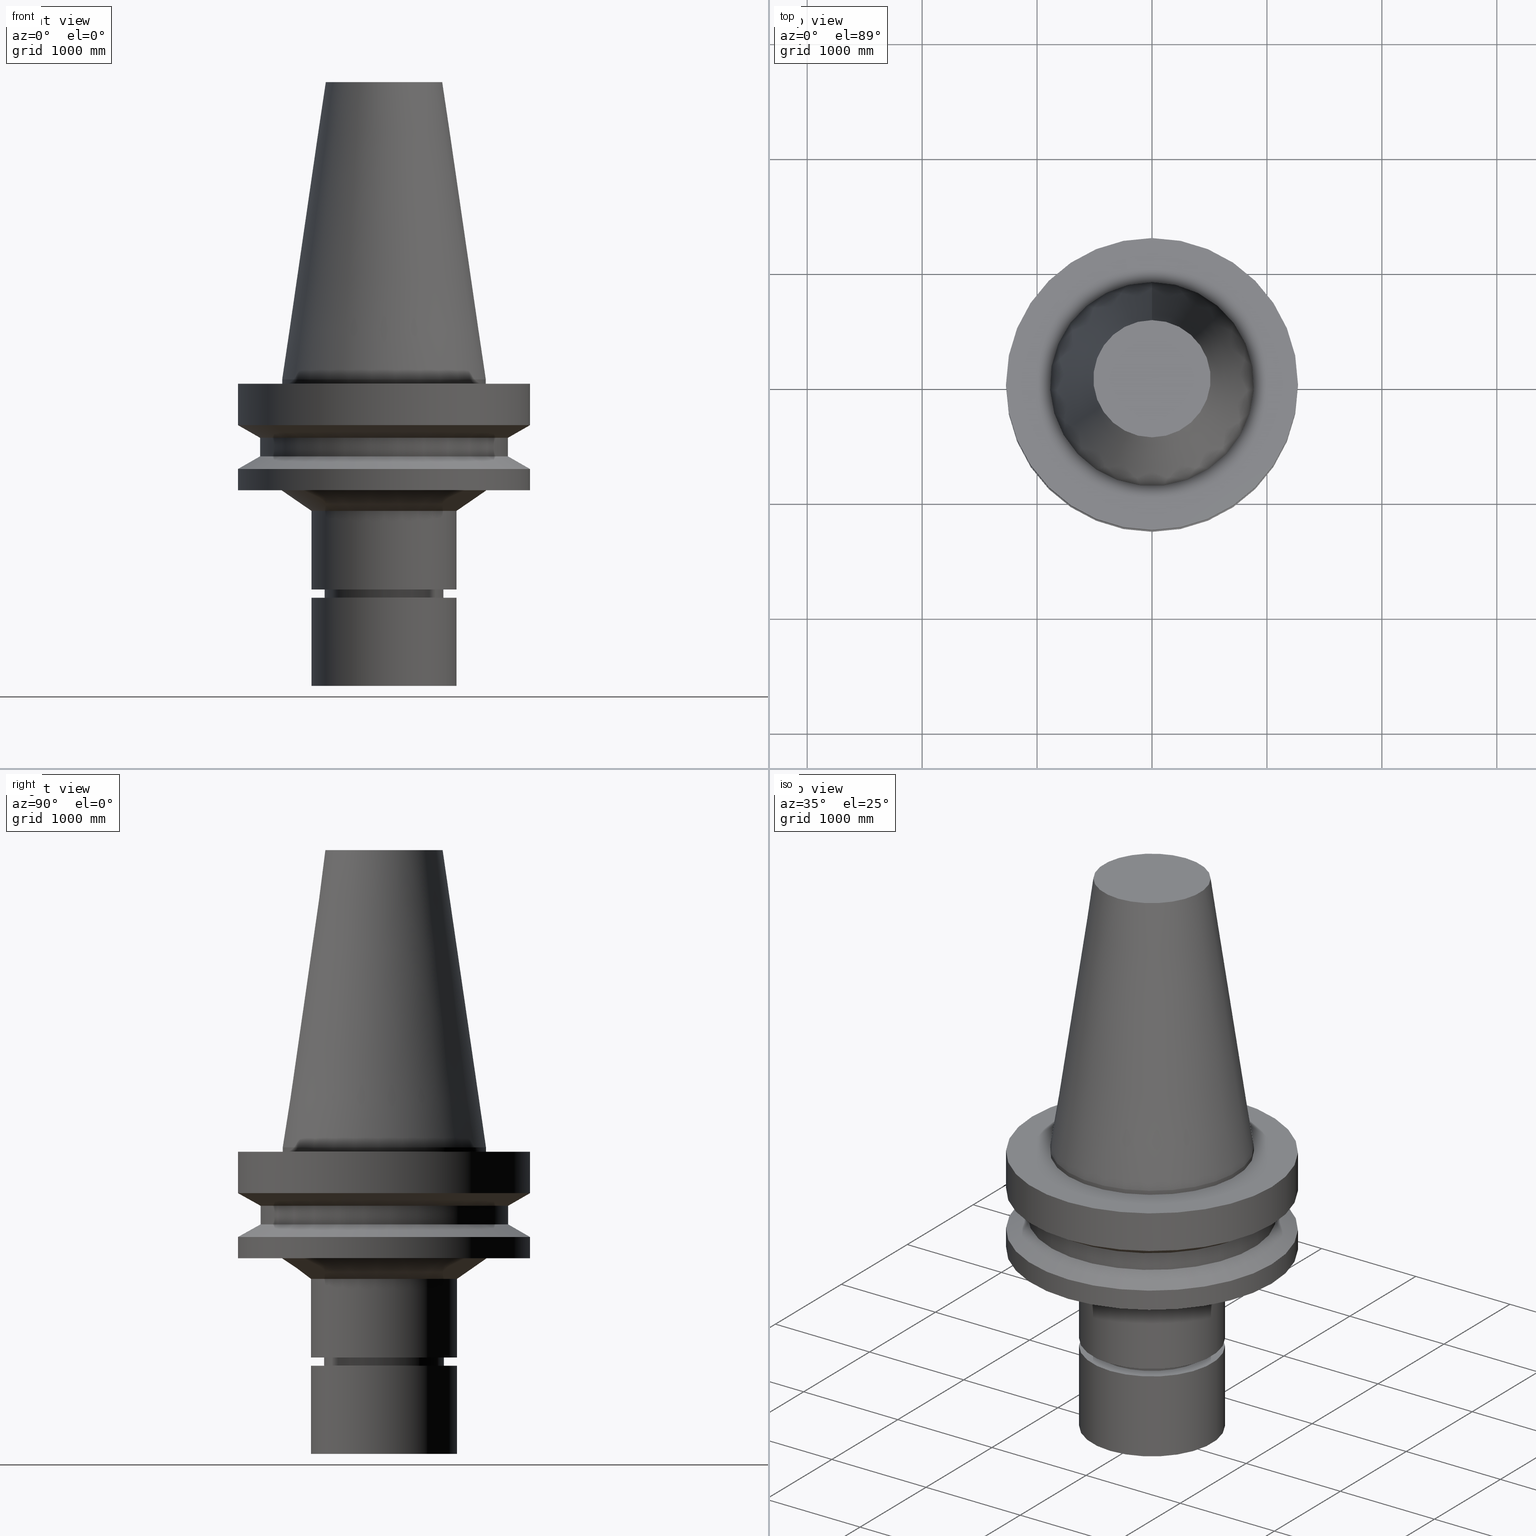
[diagram: canonical four-view strip — front | top / right | iso, engineering-drawing reading convention]
A machine part, canonical four-view strip (front | top / right | iso — engineering-drawing reading convention). The complete STEP part file that produces these views, byte-faithful:
ISO-10303-21;
HEADER;
FILE_DESCRIPTION((''),'1');
FILE_NAME('V:/90_\X2\53D65F9730C730FC30BF\X0\/00_\X2\6DE18DEF30C730FC30BF\X0\/ALL/BBT-BKUS\X2\FF76FF80FF9BFF78FF9E752852A05DE556F3\X0\201801/BBT50-MEGAER/BBT50-MEGAER32-105NL.stp','2018-02-02T08:17:34',(''),(''),'Spatial Interop R21 SP3','Kubotek KeyCreator 2011 V10.0.2 (22737)',' ');
FILE_SCHEMA(('automotive_design'));
ENDSEC;
DATA;
#1=MECHANICAL_DESIGN_GEOMETRIC_PRESENTATION_REPRESENTATION(' ',(#14,#15,#16,#17,#18,#19,#20,#21,#22,#23,#24,#25,#26,#27,#28,#29,#30,#31,#32,#33,#34,#35,#36,#37,#38,#39,#40,#41,#42,#43,#44,#45,#46,#47,#48,#49,#50,#51,#52,#53,#54,#55),#10);
#2=PRODUCT_DEFINITION_CONTEXT('',#56,'design');
#3=APPLICATION_PROTOCOL_DEFINITION('INTERNATIONAL STANDARD','automotive_design',1994,#56);
#4=PRODUCT_CATEGORY_RELATIONSHIP('NONE','NONE',#57,#58);
#5=SHAPE_DEFINITION_REPRESENTATION(#59,#60);
#6=PRODUCT_DEFINITION_CONTEXT('',#61,'design');
#7=APPLICATION_PROTOCOL_DEFINITION('INTERNATIONAL STANDARD','automotive_design',1994,#61);
#8=PRODUCT_CATEGORY_RELATIONSHIP('NONE','NONE',#62,#63);
#9=SHAPE_DEFINITION_REPRESENTATION(#64,#65);
#10= (GEOMETRIC_REPRESENTATION_CONTEXT(3)GLOBAL_UNCERTAINTY_ASSIGNED_CONTEXT((#68))GLOBAL_UNIT_ASSIGNED_CONTEXT((#70,#71,#72))REPRESENTATION_CONTEXT('NONE','WORKSPACE'));
#14=STYLED_ITEM('',(#74),#75);
#15=STYLED_ITEM('',(#76),#77);
#16=STYLED_ITEM('',(#78),#79);
#17=STYLED_ITEM('',(#80,#81),#82);
#18=STYLED_ITEM('',(#83,#84),#85);
#19=STYLED_ITEM('',(#86,#87),#88);
#20=STYLED_ITEM('',(#89,#90),#91);
#21=STYLED_ITEM('',(#92,#93),#94);
#22=STYLED_ITEM('',(#95,#96),#97);
#23=STYLED_ITEM('',(#98),#99);
#24=STYLED_ITEM('',(#100),#101);
#25=STYLED_ITEM('',(#102,#103),#104);
#26=STYLED_ITEM('',(#105),#106);
#27=STYLED_ITEM('',(#107),#108);
#28=STYLED_ITEM('',(#109),#110);
#29=STYLED_ITEM('',(#111),#112);
#30=STYLED_ITEM('',(#113,#114),#115);
#31=STYLED_ITEM('',(#116,#117),#118);
#32=STYLED_ITEM('',(#119,#120),#121);
#33=STYLED_ITEM('',(#122),#123);
#34=STYLED_ITEM('',(#124,#125),#126);
#35=STYLED_ITEM('',(#127,#128),#129);
#36=STYLED_ITEM('',(#130),#131);
#37=STYLED_ITEM('',(#132,#133),#134);
#38=STYLED_ITEM('',(#135,#136),#137);
#39=STYLED_ITEM('',(#138),#139);
#40=STYLED_ITEM('',(#140,#141),#142);
#41=STYLED_ITEM('',(#143),#144);
#42=STYLED_ITEM('',(#145,#146),#147);
#43=STYLED_ITEM('',(#148,#149),#150);
#44=STYLED_ITEM('',(#151),#152);
#45=STYLED_ITEM('',(#153,#154),#155);
#46=STYLED_ITEM('',(#156),#157);
#47=STYLED_ITEM('',(#158,#159),#160);
#48=STYLED_ITEM('',(#161,#162),#163);
#49=STYLED_ITEM('',(#164,#165),#166);
#50=STYLED_ITEM('',(#167,#168),#169);
#51=STYLED_ITEM('',(#170),#171);
#52=STYLED_ITEM('',(#172),#173);
#53=STYLED_ITEM('',(#174,#175),#176);
#54=STYLED_ITEM('',(#177),#178);
#55=STYLED_ITEM('',(#179),#180);
#56=APPLICATION_CONTEXT(' ');
#57=PRODUCT_CATEGORY('part','NONE');
#58=PRODUCT_RELATED_PRODUCT_CATEGORY('detail',' ',(#181));
#59=PRODUCT_DEFINITION_SHAPE('NONE','NONE',#182);
#60=ADVANCED_BREP_SHAPE_REPRESENTATION('Unnamed[1]',(#169,#183),#10);
#61=APPLICATION_CONTEXT(' ');
#62=PRODUCT_CATEGORY('part','NONE');
#63=PRODUCT_RELATED_PRODUCT_CATEGORY('detail',' ',(#184));
#64=PRODUCT_DEFINITION_SHAPE('NONE','NONE',#185);
#65=ADVANCED_BREP_SHAPE_REPRESENTATION('Unnamed[1]',(#137,#186),#10);
#68=UNCERTAINTY_MEASURE_WITH_UNIT(LENGTH_MEASURE(1.0E-006),#70,'','');
#70= (CONVERSION_BASED_UNIT('INCH',#189)LENGTH_UNIT()NAMED_UNIT(#192));
#71= (NAMED_UNIT(#194)PLANE_ANGLE_UNIT()SI_UNIT($,.RADIAN.));
#72= (NAMED_UNIT(#194)SOLID_ANGLE_UNIT()SI_UNIT($,.STERADIAN.));
#74=PRESENTATION_STYLE_ASSIGNMENT((#200));
#75=EDGE_CURVE('Unnamed[1]',#201,#201,#202,.T.);
#76=PRESENTATION_STYLE_ASSIGNMENT((#203));
#77=EDGE_CURVE('Unnamed[1]',#204,#204,#205,.T.);
#78=PRESENTATION_STYLE_ASSIGNMENT((#206));
#79=EDGE_CURVE('Unnamed[1]',#207,#207,#208,.T.);
#80=PRESENTATION_STYLE_ASSIGNMENT((#209));
#81=PRESENTATION_STYLE_ASSIGNMENT((#210));
#82=ADVANCED_FACE('Unnamed[1]',(#211,#212),#213,.T.);
#83=PRESENTATION_STYLE_ASSIGNMENT((#214));
#84=PRESENTATION_STYLE_ASSIGNMENT((#215));
#85=ADVANCED_FACE('Unnamed[1]',(#216,#217),#218,.T.);
#86=PRESENTATION_STYLE_ASSIGNMENT((#219));
#87=PRESENTATION_STYLE_ASSIGNMENT((#220));
#88=ADVANCED_FACE('Unnamed[1]',(#221,#222),#223,.T.);
#89=PRESENTATION_STYLE_ASSIGNMENT((#224));
#90=PRESENTATION_STYLE_ASSIGNMENT((#225));
#91=ADVANCED_FACE('Unnamed[1]',(#226,#227),#228,.T.);
#92=PRESENTATION_STYLE_ASSIGNMENT((#229));
#93=PRESENTATION_STYLE_ASSIGNMENT((#230));
#94=ADVANCED_FACE('Unnamed[1]',(#231,#232),#233,.T.);
#95=PRESENTATION_STYLE_ASSIGNMENT((#234));
#96=PRESENTATION_STYLE_ASSIGNMENT((#235));
#97=ADVANCED_FACE('Unnamed[1]',(#236,#237),#238,.T.);
#98=PRESENTATION_STYLE_ASSIGNMENT((#239));
#99=EDGE_CURVE('Unnamed[1]',#240,#240,#241,.T.);
#100=PRESENTATION_STYLE_ASSIGNMENT((#242));
#101=EDGE_CURVE('Unnamed[1]',#243,#243,#244,.T.);
#102=PRESENTATION_STYLE_ASSIGNMENT((#245));
#103=PRESENTATION_STYLE_ASSIGNMENT((#246));
#104=ADVANCED_FACE('Unnamed[1]',(#247),#248,.T.);
#105=PRESENTATION_STYLE_ASSIGNMENT((#249));
#106=EDGE_CURVE('Unnamed[1]',#250,#250,#251,.T.);
#107=PRESENTATION_STYLE_ASSIGNMENT((#252));
#108=EDGE_CURVE('Unnamed[1]',#253,#253,#254,.T.);
#109=PRESENTATION_STYLE_ASSIGNMENT((#255));
#110=EDGE_CURVE('Unnamed[1]',#256,#256,#257,.T.);
#111=PRESENTATION_STYLE_ASSIGNMENT((#258));
#112=EDGE_CURVE('Unnamed[1]',#259,#259,#260,.T.);
#113=PRESENTATION_STYLE_ASSIGNMENT((#261));
#114=PRESENTATION_STYLE_ASSIGNMENT((#262));
#115=ADVANCED_FACE('Unnamed[1]',(#263,#264),#265,.T.);
#116=PRESENTATION_STYLE_ASSIGNMENT((#266));
#117=PRESENTATION_STYLE_ASSIGNMENT((#267));
#118=ADVANCED_FACE('Unnamed[1]',(#268,#269),#270,.T.);
#119=PRESENTATION_STYLE_ASSIGNMENT((#271));
#120=PRESENTATION_STYLE_ASSIGNMENT((#272));
#121=ADVANCED_FACE('Unnamed[1]',(#273,#274),#275,.T.);
#122=PRESENTATION_STYLE_ASSIGNMENT((#276));
#123=EDGE_CURVE('Unnamed[1]',#277,#277,#278,.T.);
#124=PRESENTATION_STYLE_ASSIGNMENT((#279));
#125=PRESENTATION_STYLE_ASSIGNMENT((#280));
#126=ADVANCED_FACE('Unnamed[1]',(#281,#282),#283,.T.);
#127=PRESENTATION_STYLE_ASSIGNMENT((#284));
#128=PRESENTATION_STYLE_ASSIGNMENT((#285));
#129=ADVANCED_FACE('Unnamed[1]',(#286,#287),#288,.T.);
#130=PRESENTATION_STYLE_ASSIGNMENT((#289));
#131=EDGE_CURVE('Unnamed[1]',#290,#290,#291,.T.);
#132=PRESENTATION_STYLE_ASSIGNMENT((#292));
#133=PRESENTATION_STYLE_ASSIGNMENT((#293));
#134=ADVANCED_FACE('Unnamed[1]',(#294,#295),#296,.T.);
#135=PRESENTATION_STYLE_ASSIGNMENT((#297));
#136=PRESENTATION_STYLE_ASSIGNMENT((#298));
#137=MANIFOLD_SOLID_BREP('Unnamed[1]',#299);
#138=PRESENTATION_STYLE_ASSIGNMENT((#300));
#139=EDGE_CURVE('Unnamed[1]',#301,#301,#302,.T.);
#140=PRESENTATION_STYLE_ASSIGNMENT((#303));
#141=PRESENTATION_STYLE_ASSIGNMENT((#304));
#142=ADVANCED_FACE('Unnamed[1]',(#305,#306),#307,.T.);
#143=PRESENTATION_STYLE_ASSIGNMENT((#308));
#144=EDGE_CURVE('Unnamed[1]',#309,#309,#310,.T.);
#145=PRESENTATION_STYLE_ASSIGNMENT((#311));
#146=PRESENTATION_STYLE_ASSIGNMENT((#312));
#147=ADVANCED_FACE('Unnamed[1]',(#313),#314,.T.);
#148=PRESENTATION_STYLE_ASSIGNMENT((#315));
#149=PRESENTATION_STYLE_ASSIGNMENT((#316));
#150=ADVANCED_FACE('Unnamed[1]',(#317,#318),#319,.T.);
#151=PRESENTATION_STYLE_ASSIGNMENT((#320));
#152=EDGE_CURVE('Unnamed[1]',#321,#321,#322,.T.);
#153=PRESENTATION_STYLE_ASSIGNMENT((#323));
#154=PRESENTATION_STYLE_ASSIGNMENT((#324));
#155=ADVANCED_FACE('Unnamed[1]',(#325,#326),#327,.T.);
#156=PRESENTATION_STYLE_ASSIGNMENT((#328));
#157=EDGE_CURVE('Unnamed[1]',#329,#329,#330,.T.);
#158=PRESENTATION_STYLE_ASSIGNMENT((#331));
#159=PRESENTATION_STYLE_ASSIGNMENT((#332));
#160=ADVANCED_FACE('Unnamed[1]',(#333),#334,.T.);
#161=PRESENTATION_STYLE_ASSIGNMENT((#335));
#162=PRESENTATION_STYLE_ASSIGNMENT((#336));
#163=ADVANCED_FACE('Unnamed[1]',(#337),#338,.T.);
#164=PRESENTATION_STYLE_ASSIGNMENT((#339));
#165=PRESENTATION_STYLE_ASSIGNMENT((#340));
#166=ADVANCED_FACE('Unnamed[1]',(#341,#342),#343,.T.);
#167=PRESENTATION_STYLE_ASSIGNMENT((#344));
#168=PRESENTATION_STYLE_ASSIGNMENT((#345));
#169=MANIFOLD_SOLID_BREP('Unnamed[1]',#346);
#170=PRESENTATION_STYLE_ASSIGNMENT((#347));
#171=EDGE_CURVE('Unnamed[1]',#348,#348,#349,.T.);
#172=PRESENTATION_STYLE_ASSIGNMENT((#350));
#173=EDGE_CURVE('Unnamed[1]',#351,#351,#352,.T.);
#174=PRESENTATION_STYLE_ASSIGNMENT((#353));
#175=PRESENTATION_STYLE_ASSIGNMENT((#354));
#176=ADVANCED_FACE('Unnamed[1]',(#355,#356),#357,.T.);
#177=PRESENTATION_STYLE_ASSIGNMENT((#358));
#178=EDGE_CURVE('Unnamed[1]',#359,#359,#360,.T.);
#179=PRESENTATION_STYLE_ASSIGNMENT((#361));
#180=EDGE_CURVE('Unnamed[1]',#362,#362,#363,.T.);
#181=PRODUCT('Unnamed[1]','Unnamed[1]','PART-Unnamed[1]-DESC',(#364));
#182=PRODUCT_DEFINITION('NONE','NONE',#365,#2);
#183=AXIS2_PLACEMENT_3D('',#366,#367,#368);
#184=PRODUCT('Unnamed[1]','Unnamed[1]','PART-Unnamed[1]-DESC',(#369));
#185=PRODUCT_DEFINITION('NONE','NONE',#370,#6);
#186=AXIS2_PLACEMENT_3D('',#371,#372,#373);
#189=LENGTH_MEASURE_WITH_UNIT(LENGTH_MEASURE(25.4),#374);
#192=DIMENSIONAL_EXPONENTS(1.0,0.0,0.0,0.0,0.0,0.0,0.0);
#194=DIMENSIONAL_EXPONENTS(0.0,0.0,0.0,0.0,0.0,0.0,0.0);
#200=CURVE_STYLE('',#375,POSITIVE_LENGTH_MEASURE(1000.0),#376);
#201=VERTEX_POINT('',#377);
#202=CIRCLE('',#378,50.0);
#203=CURVE_STYLE('',#379,POSITIVE_LENGTH_MEASURE(1000.0),#380);
#204=VERTEX_POINT('',#381);
#205=CIRCLE('',#382,35.1435726714549);
#206=CURVE_STYLE('',#383,POSITIVE_LENGTH_MEASURE(1000.0),#384);
#207=VERTEX_POINT('',#385);
#208=CIRCLE('',#386,20.0);
#209=SURFACE_STYLE_USAGE(.BOTH.,#387);
#210=CURVE_STYLE('',#388,POSITIVE_LENGTH_MEASURE(1000.0),#389);
#211=FACE_OUTER_BOUND('',#390,.T.);
#212=FACE_BOUND('',#391,.T.);
#213=PLANE('',#392);
#214=SURFACE_STYLE_USAGE(.BOTH.,#393);
#215=CURVE_STYLE('',#394,POSITIVE_LENGTH_MEASURE(1000.0),#395);
#216=FACE_BOUND('',#396,.T.);
#217=FACE_BOUND('',#397,.T.);
#218=CYLINDRICAL_SURFACE('',#398,20.4999999999961);
#219=SURFACE_STYLE_USAGE(.BOTH.,#399);
#220=CURVE_STYLE('',#400,POSITIVE_LENGTH_MEASURE(1000.0),#401);
#221=FACE_BOUND('',#402,.T.);
#222=FACE_BOUND('',#403,.T.);
#223=CONICAL_SURFACE('',#404,20.2500000000006,1.04719755120248);
#224=SURFACE_STYLE_USAGE(.BOTH.,#405);
#225=CURVE_STYLE('',#406,POSITIVE_LENGTH_MEASURE(1000.0),#407);
#226=FACE_BOUND('',#408,.T.);
#227=FACE_BOUND('',#409,.T.);
#228=CONICAL_SURFACE('',#410,46.25,1.04719755108882);
#229=SURFACE_STYLE_USAGE(.BOTH.,#411);
#230=CURVE_STYLE('',#412,POSITIVE_LENGTH_MEASURE(1000.0),#413);
#231=FACE_BOUND('',#414,.T.);
#232=FACE_OUTER_BOUND('',#415,.T.);
#233=PLANE('',#416);
#234=SURFACE_STYLE_USAGE(.BOTH.,#417);
#235=CURVE_STYLE('',#418,POSITIVE_LENGTH_MEASURE(1000.0),#419);
#236=FACE_BOUND('',#420,.T.);
#237=FACE_BOUND('',#421,.T.);
#238=CONICAL_SURFACE('',#422,19.4499999999999,0.523598775598211);
#239=CURVE_STYLE('',#423,POSITIVE_LENGTH_MEASURE(1000.0),#424);
#240=VERTEX_POINT('',#425);
#241=CIRCLE('',#426,50.0);
#242=CURVE_STYLE('',#427,POSITIVE_LENGTH_MEASURE(1000.0),#428);
#243=VERTEX_POINT('',#429);
#244=CIRCLE('',#430,34.925);
#245=SURFACE_STYLE_USAGE(.BOTH.,#431);
#246=CURVE_STYLE('',#432,POSITIVE_LENGTH_MEASURE(1000.0),#433);
#247=FACE_OUTER_BOUND('',#434,.T.);
#248=PLANE('',#435);
#249=CURVE_STYLE('',#436,POSITIVE_LENGTH_MEASURE(1000.0),#437);
#250=VERTEX_POINT('',#438);
#251=CIRCLE('',#439,34.925);
#252=CURVE_STYLE('',#440,POSITIVE_LENGTH_MEASURE(1000.0),#441);
#253=VERTEX_POINT('',#442);
#254=CIRCLE('',#443,20.0791666651884);
#255=CURVE_STYLE('',#444,POSITIVE_LENGTH_MEASURE(1000.0),#445);
#256=VERTEX_POINT('',#446);
#257=CIRCLE('',#447,20.0000000000001);
#258=CURVE_STYLE('',#448,POSITIVE_LENGTH_MEASURE(1000.0),#449);
#259=VERTEX_POINT('',#450);
#260=CIRCLE('',#451,42.5);
#261=SURFACE_STYLE_USAGE(.BOTH.,#452);
#262=CURVE_STYLE('',#453,POSITIVE_LENGTH_MEASURE(1000.0),#454);
#263=FACE_BOUND('',#455,.T.);
#264=FACE_BOUND('',#456,.T.);
#265=CYLINDRICAL_SURFACE('',#457,50.0);
#266=SURFACE_STYLE_USAGE(.BOTH.,#458);
#267=CURVE_STYLE('',#459,POSITIVE_LENGTH_MEASURE(1000.0),#460);
#268=FACE_BOUND('',#461,.T.);
#269=FACE_BOUND('',#462,.T.);
#270=CYLINDRICAL_SURFACE('',#463,34.925);
#271=SURFACE_STYLE_USAGE(.BOTH.,#464);
#272=CURVE_STYLE('',#465,POSITIVE_LENGTH_MEASURE(1000.0),#466);
#273=FACE_BOUND('',#467,.T.);
#274=FACE_BOUND('',#468,.T.);
#275=CYLINDRICAL_SURFACE('',#469,42.5);
#276=CURVE_STYLE('',#470,POSITIVE_LENGTH_MEASURE(1000.0),#471);
#277=VERTEX_POINT('',#472);
#278=CIRCLE('',#473,42.5);
#279=SURFACE_STYLE_USAGE(.BOTH.,#474);
#280=CURVE_STYLE('',#475,POSITIVE_LENGTH_MEASURE(1000.0),#476);
#281=FACE_BOUND('',#477,.T.);
#282=FACE_BOUND('',#478,.T.);
#283=CYLINDRICAL_SURFACE('',#479,25.0000000000002);
#284=SURFACE_STYLE_USAGE(.BOTH.,#480);
#285=CURVE_STYLE('',#481,POSITIVE_LENGTH_MEASURE(1000.0),#482);
#286=FACE_BOUND('',#483,.T.);
#287=FACE_BOUND('',#484,.T.);
#288=CYLINDRICAL_SURFACE('',#485,50.0);
#289=CURVE_STYLE('',#486,POSITIVE_LENGTH_MEASURE(1000.0),#487);
#290=VERTEX_POINT('',#488);
#291=CIRCLE('',#489,25.0);
#292=SURFACE_STYLE_USAGE(.BOTH.,#490);
#293=CURVE_STYLE('',#491,POSITIVE_LENGTH_MEASURE(1000.0),#492);
#294=FACE_OUTER_BOUND('',#493,.T.);
#295=FACE_BOUND('',#494,.T.);
#296=PLANE('',#495);
#297=SURFACE_STYLE_USAGE(.BOTH.,#496);
#298=CURVE_STYLE('',#497,POSITIVE_LENGTH_MEASURE(1000.0),#498);
#299=CLOSED_SHELL('',(#163,#147,#155));
#300=CURVE_STYLE('',#499,POSITIVE_LENGTH_MEASURE(1000.0),#500);
#301=VERTEX_POINT('',#501);
#302=CIRCLE('',#502,20.4999999999911);
#303=SURFACE_STYLE_USAGE(.BOTH.,#503);
#304=CURVE_STYLE('',#504,POSITIVE_LENGTH_MEASURE(1000.0),#505);
#305=FACE_BOUND('',#506,.T.);
#306=FACE_BOUND('',#507,.T.);
#307=CONICAL_SURFACE('',#508,30.0717863357277,0.962446965226417);
#308=CURVE_STYLE('',#509,POSITIVE_LENGTH_MEASURE(1000.0),#510);
#309=VERTEX_POINT('',#511);
#310=CIRCLE('',#512,18.8999999999997);
#311=SURFACE_STYLE_USAGE(.BOTH.,#513);
#312=CURVE_STYLE('',#514,POSITIVE_LENGTH_MEASURE(1000.0),#515);
#313=FACE_OUTER_BOUND('',#516,.T.);
#314=PLANE('',#517);
#315=SURFACE_STYLE_USAGE(.BOTH.,#518);
#316=CURVE_STYLE('',#519,POSITIVE_LENGTH_MEASURE(1000.0),#520);
#317=FACE_BOUND('',#521,.T.);
#318=FACE_BOUND('',#522,.T.);
#319=CYLINDRICAL_SURFACE('',#523,20.0);
#320=CURVE_STYLE('',#524,POSITIVE_LENGTH_MEASURE(1000.0),#525);
#321=VERTEX_POINT('',#526);
#322=CIRCLE('',#527,25.0000000000001);
#323=SURFACE_STYLE_USAGE(.BOTH.,#528);
#324=CURVE_STYLE('',#529,POSITIVE_LENGTH_MEASURE(1000.0),#530);
#325=FACE_BOUND('',#531,.T.);
#326=FACE_BOUND('',#532,.T.);
#327=CYLINDRICAL_SURFACE('',#533,25.0);
#328=CURVE_STYLE('',#534,POSITIVE_LENGTH_MEASURE(1000.0),#535);
#329=VERTEX_POINT('',#536);
#330=CIRCLE('',#537,25.0000000000004);
#331=SURFACE_STYLE_USAGE(.BOTH.,#538);
#332=CURVE_STYLE('',#539,POSITIVE_LENGTH_MEASURE(1000.0),#540);
#333=FACE_OUTER_BOUND('',#541,.T.);
#334=PLANE('',#542);
#335=SURFACE_STYLE_USAGE(.BOTH.,#543);
#336=CURVE_STYLE('',#544,POSITIVE_LENGTH_MEASURE(1000.0),#545);
#337=FACE_OUTER_BOUND('',#546,.T.);
#338=PLANE('',#547);
#339=SURFACE_STYLE_USAGE(.BOTH.,#548);
#340=CURVE_STYLE('',#549,POSITIVE_LENGTH_MEASURE(1000.0),#550);
#341=FACE_BOUND('',#551,.T.);
#342=FACE_BOUND('',#552,.T.);
#343=CONICAL_SURFACE('',#553,27.5020833325942,0.144812498253157);
#344=SURFACE_STYLE_USAGE(.BOTH.,#554);
#345=CURVE_STYLE('',#555,POSITIVE_LENGTH_MEASURE(1000.0),#556);
#346=CLOSED_SHELL('',(#160,#97,#150,#88,#85,#82,#126,#142,#134,#115,#91,#121,#176,#129,#94,#118,#166,#104));
#347=CURVE_STYLE('',#557,POSITIVE_LENGTH_MEASURE(1000.0),#558);
#348=VERTEX_POINT('',#559);
#349=CIRCLE('',#560,50.0);
#350=CURVE_STYLE('',#561,POSITIVE_LENGTH_MEASURE(1000.0),#562);
#351=VERTEX_POINT('',#563);
#352=CIRCLE('',#564,50.0);
#353=SURFACE_STYLE_USAGE(.BOTH.,#565);
#354=CURVE_STYLE('',#566,POSITIVE_LENGTH_MEASURE(1000.0),#567);
#355=FACE_BOUND('',#568,.T.);
#356=FACE_BOUND('',#569,.T.);
#357=CONICAL_SURFACE('',#570,46.25,1.04719755108882);
#358=CURVE_STYLE('',#571,POSITIVE_LENGTH_MEASURE(1000.0),#572);
#359=VERTEX_POINT('',#573);
#360=CIRCLE('',#574,20.5000000000012);
#361=CURVE_STYLE('',#575,POSITIVE_LENGTH_MEASURE(1000.0),#576);
#362=VERTEX_POINT('',#577);
#363=CIRCLE('',#578,25.0);
#364=PRODUCT_CONTEXT('',#56,'mechanical');
#365=PRODUCT_DEFINITION_FORMATION_WITH_SPECIFIED_SOURCE(' ','NONE',#181,.NOT_KNOWN.);
#366=CARTESIAN_POINT('',(0.0,0.0,0.0));
#367=DIRECTION('',(0.0,0.0,1.0));
#368=DIRECTION('',(1.0,0.0,0.0));
#369=PRODUCT_CONTEXT('',#61,'mechanical');
#370=PRODUCT_DEFINITION_FORMATION_WITH_SPECIFIED_SOURCE(' ','NONE',#184,.NOT_KNOWN.);
#371=CARTESIAN_POINT('',(0.0,0.0,0.0));
#372=DIRECTION('',(0.0,0.0,1.0));
#373=DIRECTION('',(1.0,0.0,0.0));
#374= (NAMED_UNIT(#192)LENGTH_UNIT()SI_UNIT(.MILLI.,.METRE.));
#375=DRAUGHTING_PRE_DEFINED_CURVE_FONT('continuous');
#376=COLOUR_RGB('',0.0,1.0,0.0);
#377=CARTESIAN_POINT('',(9.18485099360509E-017,50.0,-1.49999999999999));
#378=AXIS2_PLACEMENT_3D('',#580,#581,#582);
#379=DRAUGHTING_PRE_DEFINED_CURVE_FONT('continuous');
#380=COLOUR_RGB('',0.0,1.0,0.0);
#381=CARTESIAN_POINT('',(2.32682891837996E-015,35.1435726714549,-37.9999999999998));
#382=AXIS2_PLACEMENT_3D('',#583,#584,#585);
#383=DRAUGHTING_PRE_DEFINED_CURVE_FONT('continuous');
#384=COLOUR_RGB('',0.0,1.0,0.0);
#385=CARTESIAN_POINT('',(4.80674833499597E-015,20.0,-78.5001575693926));
#386=AXIS2_PLACEMENT_3D('',#586,#587,#588);
#387=SURFACE_SIDE_STYLE('',(#589));
#388=DRAUGHTING_PRE_DEFINED_CURVE_FONT('continuous');
#389=COLOUR_RGB('',0.0,1.0,0.0);
#390=EDGE_LOOP('',(#590));
#391=EDGE_LOOP('',(#591));
#392=AXIS2_PLACEMENT_3D('',#592,#593,#594);
#393=SURFACE_SIDE_STYLE('',(#595));
#394=DRAUGHTING_PRE_DEFINED_CURVE_FONT('continuous');
#395=COLOUR_RGB('',0.0,1.0,0.0);
#396=EDGE_LOOP('',(#596));
#397=EDGE_LOOP('',(#597));
#398=AXIS2_PLACEMENT_3D('',#598,#599,#600);
#399=SURFACE_SIDE_STYLE('',(#601));
#400=DRAUGHTING_PRE_DEFINED_CURVE_FONT('continuous');
#401=COLOUR_RGB('',0.0,1.0,0.0);
#402=EDGE_LOOP('',(#602));
#403=EDGE_LOOP('',(#603));
#404=AXIS2_PLACEMENT_3D('',#604,#605,#606);
#405=SURFACE_SIDE_STYLE('',(#607));
#406=DRAUGHTING_PRE_DEFINED_CURVE_FONT('continuous');
#407=COLOUR_RGB('',0.0,1.0,0.0);
#408=EDGE_LOOP('',(#608));
#409=EDGE_LOOP('',(#609));
#410=AXIS2_PLACEMENT_3D('',#610,#611,#612);
#411=SURFACE_SIDE_STYLE('',(#613));
#412=DRAUGHTING_PRE_DEFINED_CURVE_FONT('continuous');
#413=COLOUR_RGB('',0.0,1.0,0.0);
#414=EDGE_LOOP('',(#614));
#415=EDGE_LOOP('',(#615));
#416=AXIS2_PLACEMENT_3D('',#616,#617,#618);
#417=SURFACE_SIDE_STYLE('',(#619));
#418=DRAUGHTING_PRE_DEFINED_CURVE_FONT('continuous');
#419=COLOUR_RGB('',0.0,1.0,0.0);
#420=EDGE_LOOP('',(#620));
#421=EDGE_LOOP('',(#621));
#422=AXIS2_PLACEMENT_3D('',#622,#623,#624);
#423=DRAUGHTING_PRE_DEFINED_CURVE_FONT('continuous');
#424=COLOUR_RGB('',0.0,1.0,0.0);
#425=CARTESIAN_POINT('',(9.61347737330674E-016,50.0,-15.7));
#426=AXIS2_PLACEMENT_3D('',#625,#626,#627);
#427=DRAUGHTING_PRE_DEFINED_CURVE_FONT('continuous');
#428=COLOUR_RGB('',0.0,1.0,0.0);
#429=CARTESIAN_POINT('',(-4.30483861169435E-031,34.925,4.27707894602213E-015));
#430=AXIS2_PLACEMENT_3D('',#628,#629,#630);
#431=SURFACE_SIDE_STYLE('',(#631));
#432=DRAUGHTING_PRE_DEFINED_CURVE_FONT('continuous');
#433=COLOUR_RGB('',0.0,1.0,0.0);
#434=EDGE_LOOP('',(#632));
#435=AXIS2_PLACEMENT_3D('',#633,#634,#635);
#436=DRAUGHTING_PRE_DEFINED_CURVE_FONT('continuous');
#437=COLOUR_RGB('',0.0,1.0,0.0);
#438=CARTESIAN_POINT('',(9.18485099360511E-017,34.925,-1.5));
#439=AXIS2_PLACEMENT_3D('',#636,#637,#638);
#440=DRAUGHTING_PRE_DEFINED_CURVE_FONT('continuous');
#441=COLOUR_RGB('',0.0,1.0,0.0);
#442=CARTESIAN_POINT('',(-6.23345220766003E-015,20.0791666651884,101.8));
#443=AXIS2_PLACEMENT_3D('',#639,#640,#641);
#444=DRAUGHTING_PRE_DEFINED_CURVE_FONT('continuous');
#445=COLOUR_RGB('',0.0,1.0,0.0);
#446=CARTESIAN_POINT('',(5.63917667973277E-015,20.0000000000001,-92.0947441116734));
#447=AXIS2_PLACEMENT_3D('',#642,#643,#644);
#448=DRAUGHTING_PRE_DEFINED_CURVE_FONT('continuous');
#449=COLOUR_RGB('',0.0,1.0,0.0);
#450=CARTESIAN_POINT('',(1.2264915470779E-015,42.5,-20.03012702));
#451=AXIS2_PLACEMENT_3D('',#645,#646,#647);
#452=SURFACE_SIDE_STYLE('',(#648));
#453=DRAUGHTING_PRE_DEFINED_CURVE_FONT('continuous');
#454=COLOUR_RGB('',0.0,1.0,0.0);
#455=EDGE_LOOP('',(#649));
#456=EDGE_LOOP('',(#650));
#457=AXIS2_PLACEMENT_3D('',#651,#652,#653);
#458=SURFACE_SIDE_STYLE('',(#654));
#459=DRAUGHTING_PRE_DEFINED_CURVE_FONT('continuous');
#460=COLOUR_RGB('',0.0,1.0,0.0);
#461=EDGE_LOOP('',(#655));
#462=EDGE_LOOP('',(#656));
#463=AXIS2_PLACEMENT_3D('',#657,#658,#659);
#464=SURFACE_SIDE_STYLE('',(#660));
#465=DRAUGHTING_PRE_DEFINED_CURVE_FONT('continuous');
#466=COLOUR_RGB('',0.0,1.0,0.0);
#467=EDGE_LOOP('',(#661));
#468=EDGE_LOOP('',(#662));
#469=AXIS2_PLACEMENT_3D('',#663,#664,#665);
#470=DRAUGHTING_PRE_DEFINED_CURVE_FONT('continuous');
#471=COLOUR_RGB('',0.0,1.0,0.0);
#472=CARTESIAN_POINT('',(1.61468902694397E-015,42.5,-26.3698729800001));
#473=AXIS2_PLACEMENT_3D('',#666,#667,#668);
#474=SURFACE_SIDE_STYLE('',(#669));
#475=DRAUGHTING_PRE_DEFINED_CURVE_FONT('continuous');
#476=COLOUR_RGB('',0.0,1.0,0.0);
#477=EDGE_LOOP('',(#670));
#478=EDGE_LOOP('',(#671));
#479=AXIS2_PLACEMENT_3D('',#672,#673,#674);
#480=SURFACE_SIDE_STYLE('',(#675));
#481=DRAUGHTING_PRE_DEFINED_CURVE_FONT('continuous');
#482=COLOUR_RGB('',0.0,1.0,0.0);
#483=EDGE_LOOP('',(#676));
#484=EDGE_LOOP('',(#677));
#485=AXIS2_PLACEMENT_3D('',#678,#679,#680);
#486=DRAUGHTING_PRE_DEFINED_CURVE_FONT('continuous');
#487=COLOUR_RGB('',0.0,1.0,0.0);
#488=CARTESIAN_POINT('',(4.5801790288111E-015,25.0,-74.8));
#489=AXIS2_PLACEMENT_3D('',#681,#682,#683);
#490=SURFACE_SIDE_STYLE('',(#684));
#491=DRAUGHTING_PRE_DEFINED_CURVE_FONT('continuous');
#492=COLOUR_RGB('',0.0,1.0,0.0);
#493=EDGE_LOOP('',(#685));
#494=EDGE_LOOP('',(#686));
#495=AXIS2_PLACEMENT_3D('',#687,#688,#689);
#496=SURFACE_SIDE_STYLE('',(#690));
#497=DRAUGHTING_PRE_DEFINED_CURVE_FONT('continuous');
#498=COLOUR_RGB('',0.0,1.0,0.0);
#499=DRAUGHTING_PRE_DEFINED_CURVE_FONT('continuous');
#500=COLOUR_RGB('',0.0,1.0,0.0);
#501=CARTESIAN_POINT('',(4.40873812527381E-015,20.4999999999911,-72.0001575694044));
#502=AXIS2_PLACEMENT_3D('',#691,#692,#693);
#503=SURFACE_SIDE_STYLE('',(#694));
#504=DRAUGHTING_PRE_DEFINED_CURVE_FONT('continuous');
#505=COLOUR_RGB('',0.0,1.0,0.0);
#506=EDGE_LOOP('',(#695));
#507=EDGE_LOOP('',(#696));
#508=AXIS2_PLACEMENT_3D('',#697,#698,#699);
#509=DRAUGHTING_PRE_DEFINED_CURVE_FONT('continuous');
#510=COLOUR_RGB('',0.0,1.0,0.0);
#511=CARTESIAN_POINT('',(5.75583995599258E-015,18.8999999999997,-94.0000000000003));
#512=AXIS2_PLACEMENT_3D('',#700,#701,#702);
#513=SURFACE_SIDE_STYLE('',(#703));
#514=DRAUGHTING_PRE_DEFINED_CURVE_FONT('continuous');
#515=COLOUR_RGB('',0.0,1.0,0.0);
#516=EDGE_LOOP('',(#704));
#517=AXIS2_PLACEMENT_3D('',#705,#706,#707);
#518=SURFACE_SIDE_STYLE('',(#708));
#519=DRAUGHTING_PRE_DEFINED_CURVE_FONT('continuous');
#520=COLOUR_RGB('',0.0,1.0,0.0);
#521=EDGE_LOOP('',(#709));
#522=EDGE_LOOP('',(#710));
#523=AXIS2_PLACEMENT_3D('',#711,#712,#713);
#524=DRAUGHTING_PRE_DEFINED_CURVE_FONT('continuous');
#525=COLOUR_RGB('',0.0,1.0,0.0);
#526=CARTESIAN_POINT('',(4.40873812527379E-015,25.0000000000001,-72.0001575694041));
#527=AXIS2_PLACEMENT_3D('',#714,#715,#716);
#528=SURFACE_SIDE_STYLE('',(#717));
#529=DRAUGHTING_PRE_DEFINED_CURVE_FONT('continuous');
#530=COLOUR_RGB('',0.0,1.0,0.0);
#531=EDGE_LOOP('',(#718));
#532=EDGE_LOOP('',(#719));
#533=AXIS2_PLACEMENT_3D('',#720,#721,#722);
#534=DRAUGHTING_PRE_DEFINED_CURVE_FONT('continuous');
#535=COLOUR_RGB('',0.0,1.0,0.0);
#536=CARTESIAN_POINT('',(2.75941339741647E-015,25.0000000000004,-45.0646406676223));
#537=AXIS2_PLACEMENT_3D('',#723,#724,#725);
#538=SURFACE_SIDE_STYLE('',(#726));
#539=DRAUGHTING_PRE_DEFINED_CURVE_FONT('continuous');
#540=COLOUR_RGB('',0.0,1.0,0.0);
#541=EDGE_LOOP('',(#727));
#542=AXIS2_PLACEMENT_3D('',#728,#729,#730);
#543=SURFACE_SIDE_STYLE('',(#731));
#544=DRAUGHTING_PRE_DEFINED_CURVE_FONT('continuous');
#545=COLOUR_RGB('',0.0,1.0,0.0);
#546=EDGE_LOOP('',(#732));
#547=AXIS2_PLACEMENT_3D('',#733,#734,#735);
#548=SURFACE_SIDE_STYLE('',(#736));
#549=DRAUGHTING_PRE_DEFINED_CURVE_FONT('continuous');
#550=COLOUR_RGB('',0.0,1.0,0.0);
#551=EDGE_LOOP('',(#737));
#552=EDGE_LOOP('',(#738));
#553=AXIS2_PLACEMENT_3D('',#739,#740,#741);
#554=SURFACE_SIDE_STYLE('',(#742));
#555=DRAUGHTING_PRE_DEFINED_CURVE_FONT('continuous');
#556=COLOUR_RGB('',0.0,1.0,0.0);
#557=DRAUGHTING_PRE_DEFINED_CURVE_FONT('continuous');
#558=COLOUR_RGB('',0.0,1.0,0.0);
#559=CARTESIAN_POINT('',(1.87983283669119E-015,50.0,-30.7000000000001));
#560=AXIS2_PLACEMENT_3D('',#743,#744,#745);
#561=DRAUGHTING_PRE_DEFINED_CURVE_FONT('continuous');
#562=COLOUR_RGB('',0.0,1.0,0.0);
#563=CARTESIAN_POINT('',(2.32682891837996E-015,50.0,-37.9999999999998));
#564=AXIS2_PLACEMENT_3D('',#746,#747,#748);
#565=SURFACE_SIDE_STYLE('',(#749));
#566=DRAUGHTING_PRE_DEFINED_CURVE_FONT('continuous');
#567=COLOUR_RGB('',0.0,1.0,0.0);
#568=EDGE_LOOP('',(#750));
#569=EDGE_LOOP('',(#751));
#570=AXIS2_PLACEMENT_3D('',#752,#753,#754);
#571=DRAUGHTING_PRE_DEFINED_CURVE_FONT('continuous');
#572=COLOUR_RGB('',0.0,1.0,0.0);
#573=CARTESIAN_POINT('',(4.78907208101742E-015,20.5000000000012,-78.211482434801));
#574=AXIS2_PLACEMENT_3D('',#755,#756,#757);
#575=DRAUGHTING_PRE_DEFINED_CURVE_FONT('continuous');
#576=COLOUR_RGB('',0.0,1.0,0.0);
#577=CARTESIAN_POINT('',(6.4293956955236E-015,25.0,-105.0));
#578=AXIS2_PLACEMENT_3D('',#758,#759,#760);
#580=CARTESIAN_POINT('',(9.18485099360515E-017,1.29959575562706E-014,-1.5));
#581=DIRECTION('',(-6.12323399573677E-017,1.40684069917098E-019,1.0));
#582=DIRECTION('',(-4.81853831597521E-033,1.0,-1.40684069917098E-019));
#583=CARTESIAN_POINT('',(2.32682891837996E-015,1.29908225877178E-014,-37.9999999999998));
#584=DIRECTION('',(-6.12323399573677E-017,1.40684069932644E-019,1.0));
#585=DIRECTION('',(-4.81853831597447E-033,1.0,-1.40684069932644E-019));
#586=CARTESIAN_POINT('',(4.80674833499597E-015,1.29851248607178E-014,-78.5001575693926));
#587=DIRECTION('',(-6.12323399573676E-017,1.40684069965566E-019,1.0));
#588=DIRECTION('',(-4.81853831596983E-033,1.0,-1.40684069965566E-019));
#589=SURFACE_STYLE_FILL_AREA(#761);
#590=ORIENTED_EDGE('',*,*,#152,.F.);
#591=ORIENTED_EDGE('',*,*,#139,.T.);
#592=CARTESIAN_POINT('',(4.4087381252738E-015,22.7499999999956,-72.0001575694042));
#593=DIRECTION('',(6.12323399573677E-017,6.95977543985413E-014,-1.0));
#594=DIRECTION('',(4.26646051033163E-030,-1.0,-6.95977543985413E-014));
#595=SURFACE_STYLE_FILL_AREA(#762);
#596=ORIENTED_EDGE('',*,*,#139,.F.);
#597=ORIENTED_EDGE('',*,*,#178,.T.);
#598=CARTESIAN_POINT('',(4.59890510314562E-015,1.29856023899415E-014,-75.1058200021027));
#599=DIRECTION('',(-6.12323399573676E-017,1.40684069904516E-019,1.0));
#600=DIRECTION('',(-4.81853831596877E-033,1.0,-1.40684069904516E-019));
#601=SURFACE_STYLE_FILL_AREA(#763);
#602=ORIENTED_EDGE('',*,*,#178,.F.);
#603=ORIENTED_EDGE('',*,*,#79,.T.);
#604=CARTESIAN_POINT('',(4.7979102080067E-015,1.29851451667142E-014,-78.3558200020968));
#605=DIRECTION('',(-6.12323399573677E-017,1.40684069934646E-019,1.0));
#606=DIRECTION('',(-4.81853831597091E-033,1.0,-1.40684069934646E-019));
#607=SURFACE_STYLE_FILL_AREA(#764);
#608=ORIENTED_EDGE('',*,*,#123,.F.);
#609=ORIENTED_EDGE('',*,*,#171,.T.);
#610=CARTESIAN_POINT('',(1.74726093181758E-015,1.29921541713746E-014,-28.5349364900001));
#611=DIRECTION('',(6.12323399573677E-017,-1.40684069941551E-019,-1.0));
#612=DIRECTION('',(-4.81853831597153E-033,1.0,-1.40684069941551E-019));
#613=SURFACE_STYLE_FILL_AREA(#765);
#614=ORIENTED_EDGE('',*,*,#106,.F.);
#615=ORIENTED_EDGE('',*,*,#75,.T.);
#616=CARTESIAN_POINT('',(9.1848509936051E-017,42.4625,-1.49999999999999));
#617=DIRECTION('',(-6.12323399573677E-017,-1.22464679914735E-016,1.0));
#618=DIRECTION('',(-1.23259516440783E-032,1.0,1.22464679914735E-016));
#619=SURFACE_STYLE_FILL_AREA(#766);
#620=ORIENTED_EDGE('',*,*,#110,.F.);
#621=ORIENTED_EDGE('',*,*,#144,.T.);
#622=CARTESIAN_POINT('',(5.69750831786267E-015,1.29830782993775E-014,-93.0473720558368));
#623=DIRECTION('',(-6.12323399573677E-017,1.40684069953315E-019,1.0));
#624=DIRECTION('',(-4.81853831597353E-033,1.0,-1.40684069953315E-019));
#625=CARTESIAN_POINT('',(9.61347737330675E-016,1.29939598424774E-014,-15.7));
#626=DIRECTION('',(-6.12323399573677E-017,1.40684069917098E-019,1.0));
#627=DIRECTION('',(-4.81853831597521E-033,1.0,-1.40684069917098E-019));
#628=CARTESIAN_POINT('',(-1.6019014550465E-046,1.29961685823755E-014,1.59157162555855E-030));
#629=DIRECTION('',(-6.12323399573677E-017,1.4068406993625E-019,1.0));
#630=DIRECTION('',(-4.81853831597758E-033,1.0,-1.4068406993625E-019));
#631=SURFACE_STYLE_FILL_AREA(#767);
#632=ORIENTED_EDGE('',*,*,#108,.T.);
#633=CARTESIAN_POINT('',(-6.23345220766003E-015,10.0395833325942,101.8));
#634=DIRECTION('',(-6.12323399573677E-017,-1.22464679914735E-016,1.0));
#635=DIRECTION('',(-1.23259516440783E-032,1.0,1.22464679914735E-016));
#636=CARTESIAN_POINT('',(9.18485099360515E-017,1.29959575562706E-014,-1.5));
#637=DIRECTION('',(-6.12323399573677E-017,1.4068406993625E-019,1.0));
#638=DIRECTION('',(-4.81853831597758E-033,1.0,-1.4068406993625E-019));
#639=CARTESIAN_POINT('',(-6.23345220766003E-015,1.30104902206953E-014,101.8));
#640=DIRECTION('',(-6.12323399573677E-017,1.40684069919115E-019,1.0));
#641=DIRECTION('',(-4.81853831597375E-033,1.0,-1.40684069919115E-019));
#642=CARTESIAN_POINT('',(5.63917667973277E-015,1.29832123189539E-014,-92.0947441116734));
#643=DIRECTION('',(-6.12323399573677E-017,1.40684069965566E-019,1.0));
#644=DIRECTION('',(-4.8185383159743E-033,1.0,-1.40684069965566E-019));
#645=CARTESIAN_POINT('',(1.2264915470779E-015,1.29933506625849E-014,-20.03012702));
#646=DIRECTION('',(-6.12323399573677E-017,1.40684069970318E-019,1.0));
#647=DIRECTION('',(-4.81853831596719E-033,1.0,-1.40684069970318E-019));
#648=SURFACE_STYLE_FILL_AREA(#768);
#649=ORIENTED_EDGE('',*,*,#171,.F.);
#650=ORIENTED_EDGE('',*,*,#173,.T.);
#651=CARTESIAN_POINT('',(2.10333087753557E-015,1.29913360845731E-014,-34.3499999999999));
#652=DIRECTION('',(-6.12323399573677E-017,1.40684069917098E-019,1.0));
#653=DIRECTION('',(-4.81853831597521E-033,1.0,-1.40684069917098E-019));
#654=SURFACE_STYLE_FILL_AREA(#769);
#655=ORIENTED_EDGE('',*,*,#101,.F.);
#656=ORIENTED_EDGE('',*,*,#106,.T.);
#657=CARTESIAN_POINT('',(4.59242549680257E-017,1.2996063069323E-014,-0.75));
#658=DIRECTION('',(-6.12323399573677E-017,1.4068406993625E-019,1.0));
#659=DIRECTION('',(-4.81853831597758E-033,1.0,-1.4068406993625E-019));
#660=SURFACE_STYLE_FILL_AREA(#770);
#661=ORIENTED_EDGE('',*,*,#112,.F.);
#662=ORIENTED_EDGE('',*,*,#123,.T.);
#663=CARTESIAN_POINT('',(1.42059028701093E-015,1.29929047119529E-014,-23.2));
#664=DIRECTION('',(-6.12323399573677E-017,1.40684069970318E-019,1.0));
#665=DIRECTION('',(-4.81853831596719E-033,1.0,-1.40684069970318E-019));
#666=CARTESIAN_POINT('',(1.61468902694397E-015,1.29924587613209E-014,-26.3698729800001));
#667=DIRECTION('',(-6.12323399573677E-017,1.40684069970318E-019,1.0));
#668=DIRECTION('',(-4.81853831596719E-033,1.0,-1.40684069970318E-019));
#669=SURFACE_STYLE_FILL_AREA(#771);
#670=ORIENTED_EDGE('',*,*,#157,.F.);
#671=ORIENTED_EDGE('',*,*,#152,.T.);
#672=CARTESIAN_POINT('',(3.58407576134513E-015,1.29879340062442E-014,-58.5323991185132));
#673=DIRECTION('',(-6.12323399573677E-017,1.40684069917097E-019,1.0));
#674=DIRECTION('',(-4.81853831597516E-033,1.0,-1.40684069917097E-019));
#675=SURFACE_STYLE_FILL_AREA(#772);
#676=ORIENTED_EDGE('',*,*,#75,.F.);
#677=ORIENTED_EDGE('',*,*,#99,.T.);
#678=CARTESIAN_POINT('',(5.26598123633363E-016,1.2994958699374E-014,-8.60000000000002));
#679=DIRECTION('',(-6.12323399573677E-017,1.40684069917098E-019,1.0));
#680=DIRECTION('',(-4.81853831597521E-033,1.0,-1.40684069917098E-019));
#681=CARTESIAN_POINT('',(4.5801790288111E-015,1.2985645413944E-014,-74.8));
#682=DIRECTION('',(6.12323399573677E-017,-1.40684069939013E-019,-1.0));
#683=DIRECTION('',(-4.81853831597193E-033,1.0,-1.40684069939013E-019));
#684=SURFACE_STYLE_FILL_AREA(#773);
#685=ORIENTED_EDGE('',*,*,#173,.F.);
#686=ORIENTED_EDGE('',*,*,#77,.T.);
#687=CARTESIAN_POINT('',(2.32682891837996E-015,42.5717863357275,-37.9999999999998));
#688=DIRECTION('',(6.12323399573677E-017,3.47037534533028E-015,-1.0));
#689=DIRECTION('',(2.173263556557E-031,-1.0,-3.47037534533028E-015));
#690=SURFACE_STYLE_FILL_AREA(#774);
#691=CARTESIAN_POINT('',(4.40873812527381E-015,1.29860393071724E-014,-72.0001575694044));
#692=DIRECTION('',(-6.12323399573677E-017,1.4068406990455E-019,1.0));
#693=DIRECTION('',(-4.81853831596996E-033,1.0,-1.4068406990455E-019));
#694=SURFACE_STYLE_FILL_AREA(#775);
#695=ORIENTED_EDGE('',*,*,#77,.F.);
#696=ORIENTED_EDGE('',*,*,#157,.T.);
#697=CARTESIAN_POINT('',(2.54312115789821E-015,1.29903256465169E-014,-41.5323203338111));
#698=DIRECTION('',(-6.12323399573677E-017,1.40684069926181E-019,1.0));
#699=DIRECTION('',(-4.81853831597474E-033,1.0,-1.40684069926181E-019));
#700=CARTESIAN_POINT('',(5.75583995599258E-015,1.29829442798012E-014,-94.0000000000003));
#701=DIRECTION('',(-6.12323399573677E-017,1.40684069940352E-019,1.0));
#702=DIRECTION('',(-4.81853831596797E-033,1.0,-1.40684069940352E-019));
#703=SURFACE_STYLE_FILL_AREA(#776);
#704=ORIENTED_EDGE('',*,*,#131,.F.);
#705=CARTESIAN_POINT('',(4.5801790288111E-015,12.5,-74.8));
#706=DIRECTION('',(-6.12323399573677E-017,-1.22464679914735E-016,1.0));
#707=DIRECTION('',(1.23259516440783E-032,-1.0,-1.22464679914735E-016));
#708=SURFACE_STYLE_FILL_AREA(#777);
#709=ORIENTED_EDGE('',*,*,#79,.F.);
#710=ORIENTED_EDGE('',*,*,#110,.T.);
#711=CARTESIAN_POINT('',(5.22296250736437E-015,1.29841685898358E-014,-85.297450840533));
#712=DIRECTION('',(-6.12323399573676E-017,1.40684069965566E-019,1.0));
#713=DIRECTION('',(-4.8185383159743E-033,1.0,-1.40684069965566E-019));
#714=CARTESIAN_POINT('',(4.40873812527379E-015,1.29860393071724E-014,-72.0001575694041));
#715=DIRECTION('',(-6.12323399573676E-017,1.40684069917098E-019,1.0));
#716=DIRECTION('',(-4.8185383159752E-033,1.0,-1.40684069917098E-019));
#717=SURFACE_STYLE_FILL_AREA(#778);
#718=ORIENTED_EDGE('',*,*,#180,.F.);
#719=ORIENTED_EDGE('',*,*,#131,.T.);
#720=CARTESIAN_POINT('',(5.50478736216735E-015,1.2983521084488E-014,-89.9));
#721=DIRECTION('',(6.12323399573677E-017,-1.40684069939013E-019,-1.0));
#722=DIRECTION('',(-4.81853831597193E-033,1.0,-1.40684069939013E-019));
#723=CARTESIAN_POINT('',(2.75941339741647E-015,1.2989828705316E-014,-45.0646406676223));
#724=DIRECTION('',(-6.12323399573677E-017,1.40684069917096E-019,1.0));
#725=DIRECTION('',(-4.81853831596796E-033,1.0,-1.40684069917096E-019));
#726=SURFACE_STYLE_FILL_AREA(#779);
#727=ORIENTED_EDGE('',*,*,#144,.F.);
#728=CARTESIAN_POINT('',(5.75583995599257E-015,9.44999999999984,-94.0000000000001));
#729=DIRECTION('',(6.12323399573677E-017,-1.41635797427754E-014,-1.0));
#730=DIRECTION('',(-8.62441977092139E-031,-1.0,1.41635797427754E-014));
#731=SURFACE_STYLE_FILL_AREA(#780);
#732=ORIENTED_EDGE('',*,*,#180,.T.);
#733=CARTESIAN_POINT('',(6.4293956955236E-015,12.5,-105.0));
#734=DIRECTION('',(6.12323399573677E-017,1.22464679914735E-016,-1.0));
#735=DIRECTION('',(-1.23259516440783E-032,1.0,1.22464679914735E-016));
#736=SURFACE_STYLE_FILL_AREA(#781);
#737=ORIENTED_EDGE('',*,*,#108,.F.);
#738=ORIENTED_EDGE('',*,*,#101,.T.);
#739=CARTESIAN_POINT('',(-3.11672610383001E-015,1.30033294015354E-014,50.9));
#740=DIRECTION('',(6.12323399573677E-017,-1.40684069988739E-019,-1.0));
#741=DIRECTION('',(-4.81853831597618E-033,1.0,-1.40684069988739E-019));
#742=SURFACE_STYLE_FILL_AREA(#782);
#743=CARTESIAN_POINT('',(1.87983283669119E-015,1.29918495814284E-014,-30.7));
#744=DIRECTION('',(-6.12323399573677E-017,1.40684069917098E-019,1.0));
#745=DIRECTION('',(-4.81853831597521E-033,1.0,-1.40684069917098E-019));
#746=CARTESIAN_POINT('',(2.32682891837996E-015,1.29908225877178E-014,-37.9999999999998));
#747=DIRECTION('',(-6.12323399573677E-017,1.40684069917098E-019,1.0));
#748=DIRECTION('',(-4.81853831597521E-033,1.0,-1.40684069917098E-019));
#749=SURFACE_STYLE_FILL_AREA(#783);
#750=ORIENTED_EDGE('',*,*,#99,.F.);
#751=ORIENTED_EDGE('',*,*,#112,.T.);
#752=CARTESIAN_POINT('',(1.09391964220429E-015,1.29936552525312E-014,-17.86506351));
#753=DIRECTION('',(-6.12323399573677E-017,1.40684069941551E-019,1.0));
#754=DIRECTION('',(-4.81853831597153E-033,1.0,-1.40684069941551E-019));
#755=CARTESIAN_POINT('',(4.78907208101742E-015,1.29851654727106E-014,-78.211482434801));
#756=DIRECTION('',(-6.12323399573677E-017,1.40684069904481E-019,1.0));
#757=DIRECTION('',(-4.81853831597634E-033,1.0,-1.40684069904481E-019));
#758=CARTESIAN_POINT('',(6.4293956955236E-015,1.29813967550319E-014,-105.0));
#759=DIRECTION('',(6.12323399573677E-017,-1.40684069939013E-019,-1.0));
#760=DIRECTION('',(-4.81853831597193E-033,1.0,-1.40684069939013E-019));
#761=FILL_AREA_STYLE('',(#784));
#762=FILL_AREA_STYLE('',(#785));
#763=FILL_AREA_STYLE('',(#786));
#764=FILL_AREA_STYLE('',(#787));
#765=FILL_AREA_STYLE('',(#788));
#766=FILL_AREA_STYLE('',(#789));
#767=FILL_AREA_STYLE('',(#790));
#768=FILL_AREA_STYLE('',(#791));
#769=FILL_AREA_STYLE('',(#792));
#770=FILL_AREA_STYLE('',(#793));
#771=FILL_AREA_STYLE('',(#794));
#772=FILL_AREA_STYLE('',(#795));
#773=FILL_AREA_STYLE('',(#796));
#774=FILL_AREA_STYLE('',(#797));
#775=FILL_AREA_STYLE('',(#798));
#776=FILL_AREA_STYLE('',(#799));
#777=FILL_AREA_STYLE('',(#800));
#778=FILL_AREA_STYLE('',(#801));
#779=FILL_AREA_STYLE('',(#802));
#780=FILL_AREA_STYLE('',(#803));
#781=FILL_AREA_STYLE('',(#804));
#782=FILL_AREA_STYLE('',(#805));
#783=FILL_AREA_STYLE('',(#806));
#784=FILL_AREA_STYLE_COLOUR('',#807);
#785=FILL_AREA_STYLE_COLOUR('',#808);
#786=FILL_AREA_STYLE_COLOUR('',#809);
#787=FILL_AREA_STYLE_COLOUR('',#810);
#788=FILL_AREA_STYLE_COLOUR('',#811);
#789=FILL_AREA_STYLE_COLOUR('',#812);
#790=FILL_AREA_STYLE_COLOUR('',#813);
#791=FILL_AREA_STYLE_COLOUR('',#814);
#792=FILL_AREA_STYLE_COLOUR('',#815);
#793=FILL_AREA_STYLE_COLOUR('',#816);
#794=FILL_AREA_STYLE_COLOUR('',#817);
#795=FILL_AREA_STYLE_COLOUR('',#818);
#796=FILL_AREA_STYLE_COLOUR('',#819);
#797=FILL_AREA_STYLE_COLOUR('',#820);
#798=FILL_AREA_STYLE_COLOUR('',#821);
#799=FILL_AREA_STYLE_COLOUR('',#822);
#800=FILL_AREA_STYLE_COLOUR('',#823);
#801=FILL_AREA_STYLE_COLOUR('',#824);
#802=FILL_AREA_STYLE_COLOUR('',#825);
#803=FILL_AREA_STYLE_COLOUR('',#826);
#804=FILL_AREA_STYLE_COLOUR('',#827);
#805=FILL_AREA_STYLE_COLOUR('',#828);
#806=FILL_AREA_STYLE_COLOUR('',#829);
#807=COLOUR_RGB('',0.0,1.0,0.0);
#808=COLOUR_RGB('',0.0,1.0,0.0);
#809=COLOUR_RGB('',0.0,1.0,0.0);
#810=COLOUR_RGB('',0.0,1.0,0.0);
#811=COLOUR_RGB('',0.0,1.0,0.0);
#812=COLOUR_RGB('',0.0,1.0,0.0);
#813=COLOUR_RGB('',0.0,1.0,0.0);
#814=COLOUR_RGB('',0.0,1.0,0.0);
#815=COLOUR_RGB('',0.0,1.0,0.0);
#816=COLOUR_RGB('',0.0,1.0,0.0);
#817=COLOUR_RGB('',0.0,1.0,0.0);
#818=COLOUR_RGB('',0.0,1.0,0.0);
#819=COLOUR_RGB('',0.0,1.0,0.0);
#820=COLOUR_RGB('',0.0,1.0,0.0);
#821=COLOUR_RGB('',0.0,1.0,0.0);
#822=COLOUR_RGB('',0.0,1.0,0.0);
#823=COLOUR_RGB('',0.0,1.0,0.0);
#824=COLOUR_RGB('',0.0,1.0,0.0);
#825=COLOUR_RGB('',0.0,1.0,0.0);
#826=COLOUR_RGB('',0.0,1.0,0.0);
#827=COLOUR_RGB('',0.0,1.0,0.0);
#828=COLOUR_RGB('',0.0,1.0,0.0);
#829=COLOUR_RGB('',0.0,1.0,0.0);
ENDSEC;
END-ISO-10303-21;
